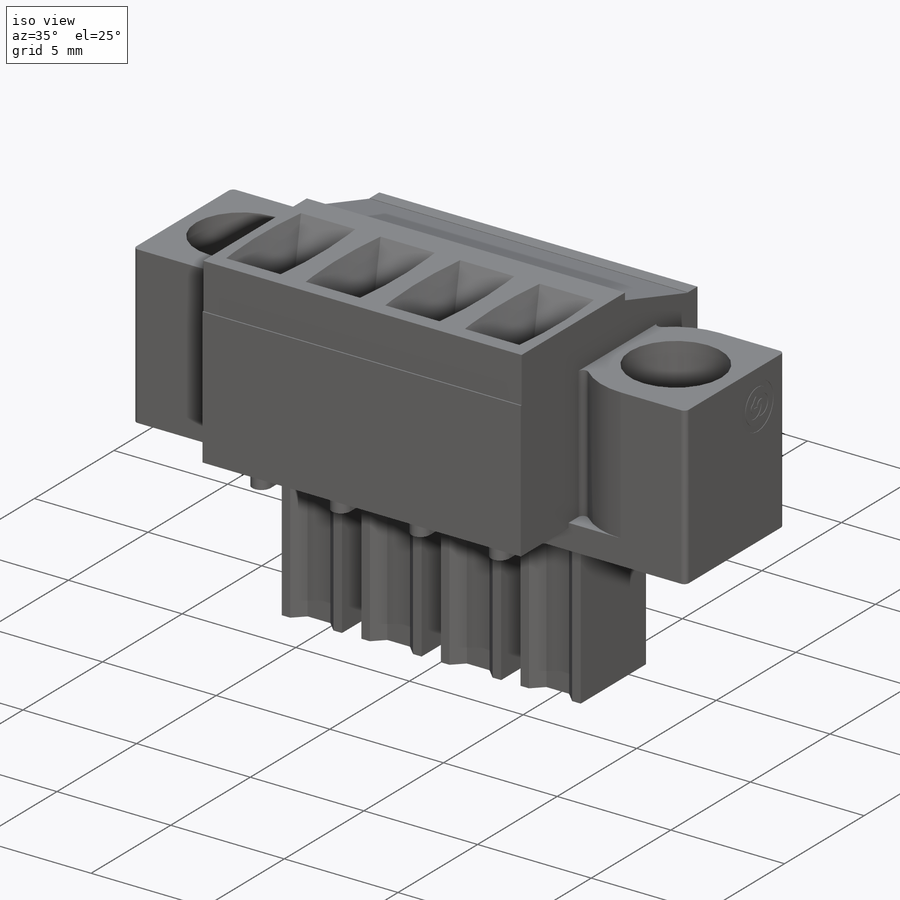
[diagram: iso view]
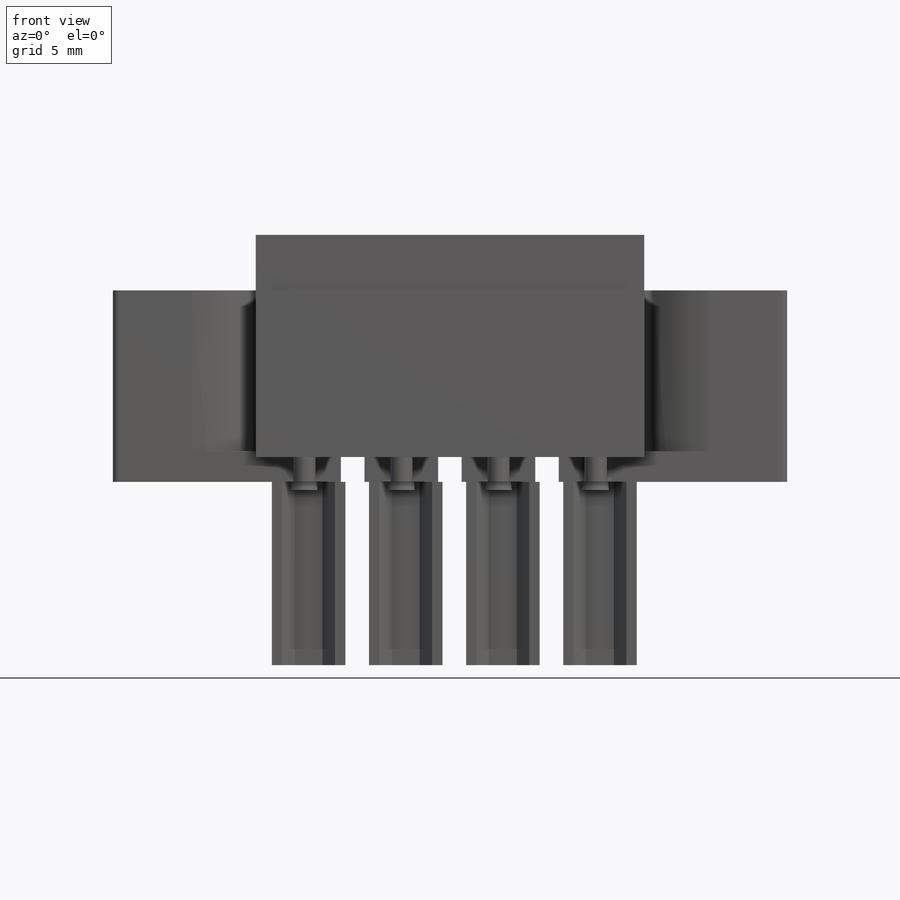
[diagram: front view]
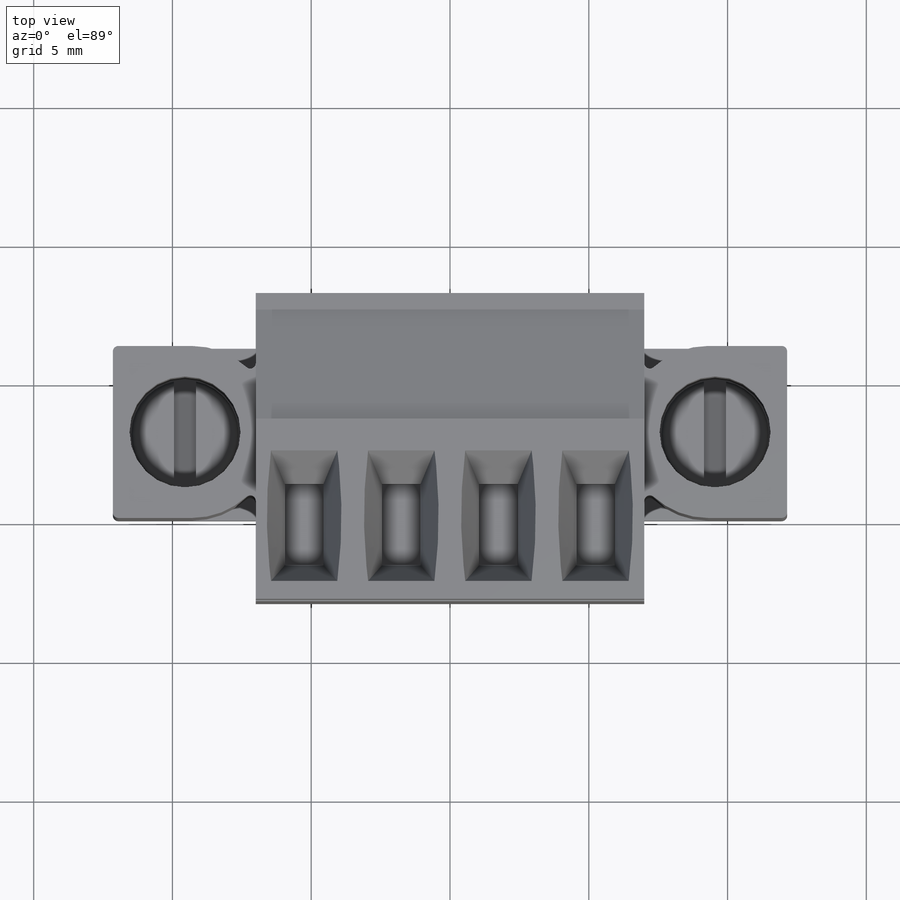
[diagram: top view]
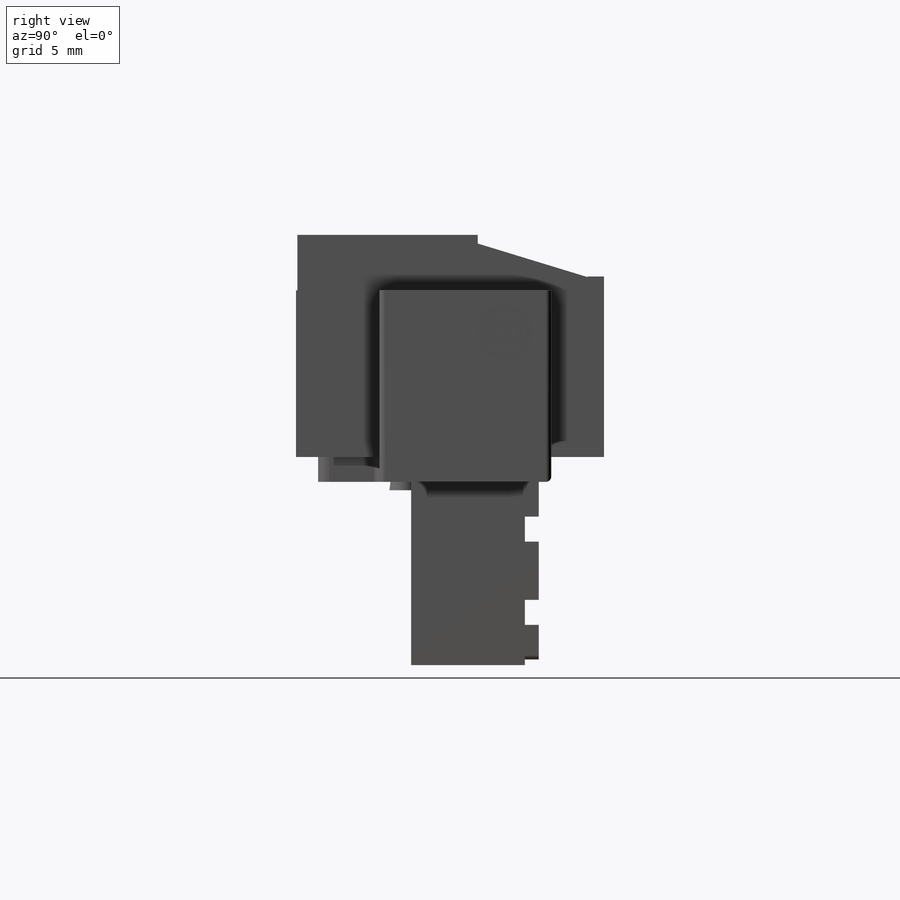
[diagram: right view]
SOLIDWORKS PART (.sldprt)
format: sldprt  version: not decoded by parser v0  size: 1,089,536 bytes
history: native  units: mm
features: sketch x23, extrude x10, fillet x8, cut_extrude x8, pattern_linear x4, hole x2, material x1, plane x1, mirror x1, chamfer x1 (+12 scaffold rows collapsed)
feature tree (71):
  scaffold x12  (default folders/planes/origin — collapsed)
  material  "PVB"
  sketch  "Sketch1"  dims[c1.D2=0.3mm c1.D1=9.2mm c2.D2=7.0mm c2.D3=0.25mm c2.D4=0.5mm c2.D1=11.1mm c3.D2=8.0mm c3.D3=2.0mm c3.D4=3.0mm c3.D5=0.4mm c3.D6=5.8mm c3.D7=1.1mm c3.D8=0.2mm c3.D9=0.05mm c3.D10=~4.130482mm c4.D10=17.0deg c4.D11=~0.017636mm c4.D12=0.6mm c4.D13=0.31mm c4.D14=6.5mm c4.D15=8.9mm c4.D5=1.9mm c4.D6=6.2mm c5.D5=6.2mm c5.D6=0.9mm]
  extrude  "Extrude1"  Depth=14mm
  sketch  "Sketch2"  dims[D1=0.2mm]
  extrude  "Extrude2"  Depth=24.3mm
  sketch  "Sketch3"  dims[c1.D1=2.9mm c1.D2=2.9mm c1.D4=5.8mm c1.D5=5.8mm c1.D6=5.8mm c1.D7=0.2mm c2.D2=2.9mm c2.D3=~2.302457mm c2.D5=2.9mm c2.D6=2.3mm]
  extrude  "Extrude3"  Depth=5.8mm
  sketch  "Sketch5"  dims[c1.D1=4.0mm c1.D2=2.6mm c2.D1=5.4mm]
  sketch  "Sketch6"  dims[D1=3.86mm]
  extrude  "Extrude4"  Depth=1.4mm
  fillet  "Fillet2"  Radius=0.2mm
  sketch  "Sketch7"  dims[D1=0.8mm]
  cut_extrude  "Extrude5"  Depth=0.9mm
  hole  "Hole2"  [1 undecoded]
  sketch  "Sketch9"  dims[c1.D1=2.9mm c1.D2=2.9mm c1.D3=2.9mm c2.D2=1.75mm c2.D3=2.8mm c2.D1=2.12mm]
  sketch  "Sketch10"  dims[D1=2.8mm]
  extrude  "Extrude6"  Depth=0.86mm
  fillet  "Fillet3"  Radius=0.15mm
  sketch  "Sketch11"  dims[D1=0.6mm]
  cut_extrude  "Extrude7"  Depth=0.6mm
  pattern_linear  "LPattern1"  Count1=2 Count2=1 Spacing1=3.55mm Spacing2=10mm
  sketch  "Sketch13"  dims[D1=0.65mm D2=0.65mm D3=0.6mm]
  cut_extrude  "Extrude8"  [1 undecoded]
  sketch  "Sketch14"  dims[D1=0.85mm D2=0.9mm D3=2.48mm]
  cut_extrude  "Extrude9"  [1 undecoded]
  pattern_linear  "LPattern2"  Count1=3 Count2=1 Spacing1=3.5mm Spacing2=10mm
  sketch  "Sketch15"  dims[c1.D1=~18.483333mm c1.D2=12.3158mm c1.D3=~3.627533mm c1.D4=~6.017533mm c1.D5=~21.960867mm c2.D2=12.3158mm c2.D3=0.56mm c2.D4=~6.017533mm c2.D5=~0.275687mm c2.D6=~2.625687mm c2.D7=~4.975687mm c3.D5=0.65mm c3.D2=2.35mm c3.D4=2.39mm]
  plane  "Plane1"  Offset=2.25mm
  sketch  "Sketch16"  dims[D1=1.39mm D2=2.93mm D3=0.6mm]
  cut_extrude  "Extrude10"  [1 undecoded]
  sketch  "Sketch"  dims[D1=0.8mm]
  mirror  "Mirror3"
  fillet  "Fillet1"  Radius=0.2mm
  sketch  "Sketch18"  dims[c1.D1=0.4mm c1.D2=0.4mm c1.D3=~0.44165mm c1.D4=0.4mm c1.D6=0.2mm c2.D1=0.4mm c2.D2=1.8mm c2.D3=1.8mm c2.D5=1.35mm c3.D1=1.8mm]
  extrude  "Extrude11"  [1 undecoded]
  fillet  "Fillet5"  Radius=0.2mm
  fillet  "Fillet4"  Radius=0.2mm
  sketch  "Sketch19"  dims[c1.D1=2.65mm c1.D2=4.1mm c1.D3=1.0mm c1.D4=1.9mm c1.D5=0.45mm c2.D5=45.0deg c2.D6=0.95mm c2.D7=0.27mm]
  extrude  "Extrude12"  Depth=6.6mm
  sketch  "Sketch20"  dims[D1=1.2mm D2=6.4mm]
  extrude  "Extrude13"  Depth=0.5mm
  hole  "Hole3"  [1 undecoded]
  sketch  "Sketch22"  dims[c1.D1=1.5mm c1.D2=1.7mm c2.D1=0.5mm]
  sketch  "Sketch23"
  cut_extrude  "Extrude14"  Depth=0.3mm
  fillet  "Fillet7"  Radius=0.15mm
  sketch  "Sketch24"  dims[D1=0.89mm D2=2.65mm]
  extrude  "Extrude15"  Depth=0.3mm
  sketch  "Sketch25"  dims[D1=2.3mm D2=1.95mm]
  cut_extrude  "Extrude16"  Depth=0.85mm
  sketch  "Sketch26"  dims[D1=0.8mm]
  extrude  "Extrude17"  Depth=7.4mm
  chamfer  "Chamfer1"  Distance=0.9mm Angle=12deg
  pattern_linear  "LPattern4"  Count1=2 Count2=1 Spacing1=3mm Spacing2=10mm
  pattern_linear  "LPattern3"  Count1=4 Count2=1 Spacing1=3.5mm Spacing2=10mm
  fillet  "Fillet8"  Radius=0.1mm
  fillet  "Fillet9"  Radius=0.2mm
  sketch  "Sketch27"  dims[c1.D1=1.52mm c1.D2=2.0mm c1.D3=0.44mm c1.D4=~0.221616mm c1.D5=~0.541328mm c1.D6=0.2mm c1.D7=0.52mm c1.D8=~1.178592mm c1.D9=~1.239487mm c1.D10=~1.259323mm c1.D11=~1.350719mm c1.D12=~1.473345mm c1.D13=~1.480035mm c1.D14=~1.56067mm c1.D15=~1.679032mm c1.D16=~1.698869mm c1.D17=~1.743654mm c2.D8=~1.178592mm c2.D9=~1.239487mm c2.D10=~4.94948mm c2.D11=~5.173495mm c2.D13=~5.359883mm c2.D14=~5.379883mm c2.D15=~5.399883mm c2.D16=~5.569155mm c2.D17=~5.803664mm c3.D10=~4.94948mm]
  cut_extrude  "Extrude18"  Depth=0.02mm
decode coverage: 49 of 57 modeling features carry decoded parameters
note: ~ marks probable driven/reference dimensions
note: 6 parameter values undecoded
summary: no parameter record found for 6 features
note: suppression state not decoded; provenance and decode notes live in map.json
